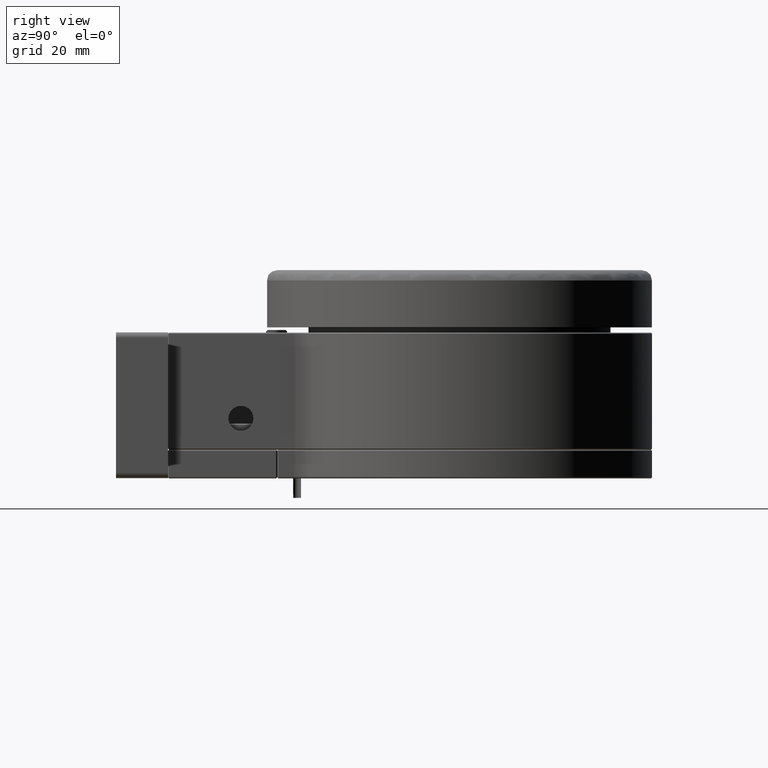
[diagram: clean part render]
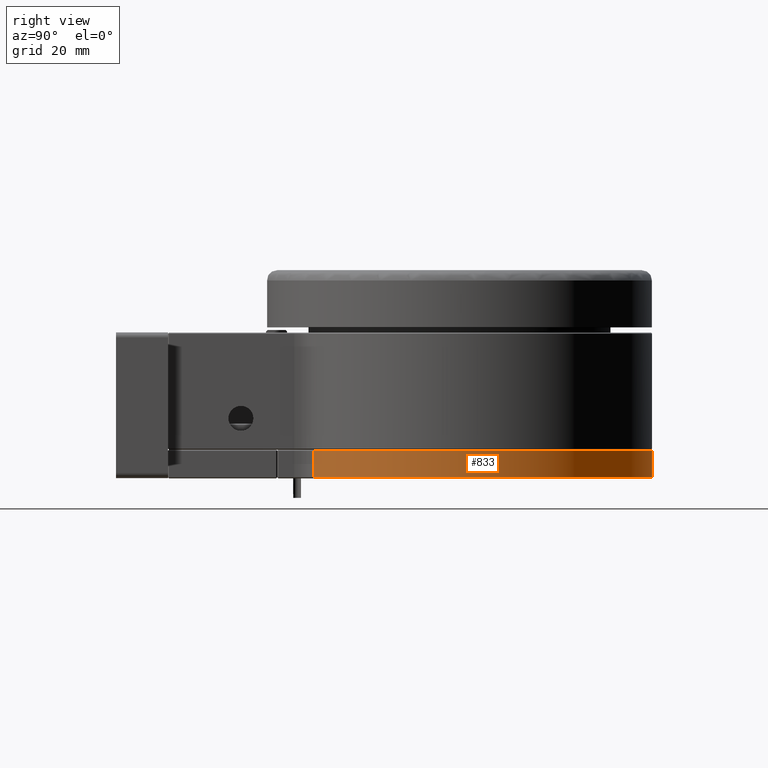
[diagram: same view with one face highlighted and labeled with its STEP entity id]
A machine part, right view. The second image highlights one B-rep face of the part: STEP entity #833.
In plain terms, the highlighted cylindrical surface (partial cylindrical patch) has radius 37 mm, axis along (-0, -0, -1).
Its self-contained STEP definition (entity closure, byte-faithful):
#134 = CARTESIAN_POINT ( 'NONE',  ( -2.517985819849855539E-13, 56.00000000000000000, 0.2000000000000007883 ) ) ;
#795 = ORIENTED_EDGE ( 'NONE', *, *, #11942, .T. ) ;
#833 = ADVANCED_FACE ( 'NONE', ( #894 ), #6599, .T. ) ;
#894 = FACE_OUTER_BOUND ( 'NONE', #1965, .T. ) ;
#1965 = EDGE_LOOP ( 'NONE', ( #795, #12271, #3707, #3160 ) ) ;
#2119 = CARTESIAN_POINT ( 'NONE',  ( -2.517985819849855539E-13, 56.00000000000000000, 5.300000000000000711 ) ) ;
#2322 = LINE ( 'NONE', #6143, #6370 ) ;
#3133 = VERTEX_POINT ( 'NONE', #4189 ) ;
#3160 = ORIENTED_EDGE ( 'NONE', *, *, #11464, .T. ) ;
#3707 = ORIENTED_EDGE ( 'NONE', *, *, #9606, .F. ) ;
#3715 = DIRECTION ( 'NONE',  ( -0.000000000000000000, -0.000000000000000000, -1.000000000000000000 ) ) ;
#3935 = DIRECTION ( 'NONE',  ( -1.000000000000000000, 0.000000000000000000, 4.688441826964342449E-17 ) ) ;
#4189 = CARTESIAN_POINT ( 'NONE',  ( 24.22619047619080845, 28.03409763639290375, 5.300000000008459722 ) ) ;
#4435 = CARTESIAN_POINT ( 'NONE',  ( -24.22619047619073385, 28.03409763638338248, 5.500000000000001776 ) ) ;
#4779 = CIRCLE ( 'NONE', #11374, 37.00000000000000711 ) ;
#4781 = CARTESIAN_POINT ( 'NONE',  ( -2.517985819849855539E-13, 56.00000000000000000, 5.500000000000001776 ) ) ;
#4889 = CARTESIAN_POINT ( 'NONE',  ( -24.22619047621214960, 28.03409763638097374, 5.299999999960074426 ) ) ;
#5212 = DIRECTION ( 'NONE',  ( -0.000000000000000000, -0.000000000000000000, -1.000000000000000000 ) ) ;
#5579 = CARTESIAN_POINT ( 'NONE',  ( 24.22619047619022581, 28.03409763638337893, 0.2000000000000008160 ) ) ;
#5634 = VECTOR ( 'NONE', #11003, 1000.000000000000000 ) ;
#5673 = AXIS2_PLACEMENT_3D ( 'NONE', #2119, #7832, #3935 ) ;
#5968 = AXIS2_PLACEMENT_3D ( 'NONE', #4781, #3715, #8536 ) ;
#6143 = CARTESIAN_POINT ( 'NONE',  ( 24.22619047619023647, 28.03409763638338603, 5.500000000000001776 ) ) ;
#6370 = VECTOR ( 'NONE', #5212, 1000.000000000000000 ) ;
#6599 = CYLINDRICAL_SURFACE ( 'NONE', #5968, 37.00000000000000711 ) ;
#7248 = LINE ( 'NONE', #4435, #5634 ) ;
#7277 = EDGE_CURVE ( 'NONE', #9136, #11228, #7248, .T. ) ;
#7414 = CARTESIAN_POINT ( 'NONE',  ( -24.22619047619639332, 28.03409763637935370, 0.1999999999874500778 ) ) ;
#7746 = VERTEX_POINT ( 'NONE', #5579 ) ;
#7832 = DIRECTION ( 'NONE',  ( -0.000000000000000000, -0.000000000000000000, 1.000000000000000000 ) ) ;
#8536 = DIRECTION ( 'NONE',  ( -1.000000000000000000, 0.000000000000000000, 0.000000000000000000 ) ) ;
#8600 = DIRECTION ( 'NONE',  ( -1.000000000000000000, 0.000000000000000000, 0.000000000000000000 ) ) ;
#9136 = VERTEX_POINT ( 'NONE', #7414 ) ;
#9606 = EDGE_CURVE ( 'NONE', #3133, #11228, #10072, .T. ) ;
#10072 = CIRCLE ( 'NONE', #5673, 37.00000000000000711 ) ;
#10481 = DIRECTION ( 'NONE',  ( 0.000000000000000000, 0.000000000000000000, 1.000000000000000000 ) ) ;
#11003 = DIRECTION ( 'NONE',  ( 0.000000000000000000, 0.000000000000000000, 1.000000000000000000 ) ) ;
#11228 = VERTEX_POINT ( 'NONE', #4889 ) ;
#11374 = AXIS2_PLACEMENT_3D ( 'NONE', #134, #10481, #8600 ) ;
#11464 = EDGE_CURVE ( 'NONE', #3133, #7746, #2322, .T. ) ;
#11942 = EDGE_CURVE ( 'NONE', #7746, #9136, #4779, .T. ) ;
#12271 = ORIENTED_EDGE ( 'NONE', *, *, #7277, .T. ) ;